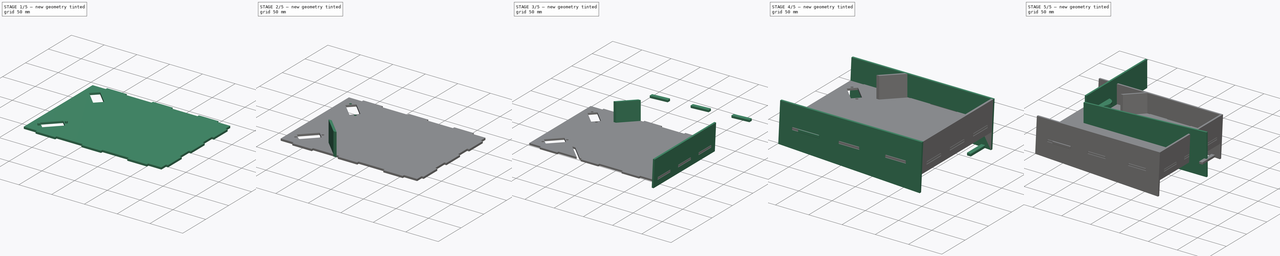
[diagram: build sequence overview — one tinted view per stage of 5, left to right]
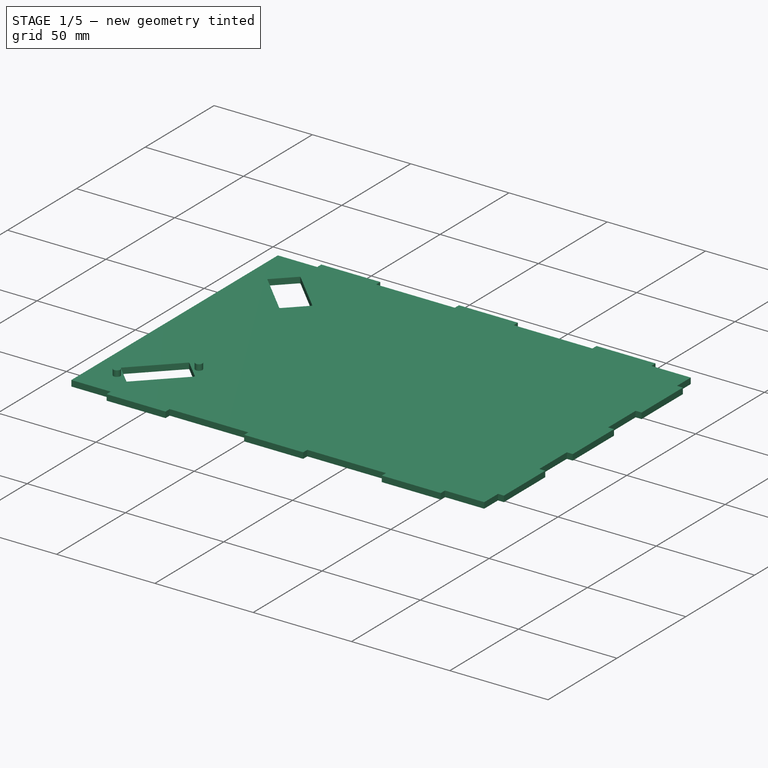
[diagram: stage 1 of 5 — iso view after this stage's code; geometry added in this stage tinted green]
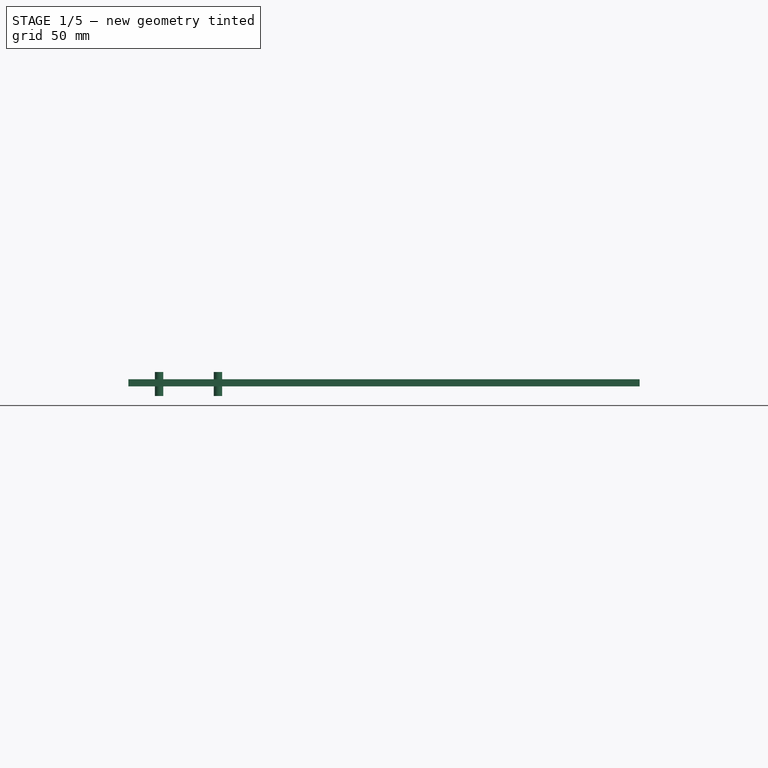
[diagram: stage 1 of 5 — front view after this stage's code; geometry added in this stage tinted green]
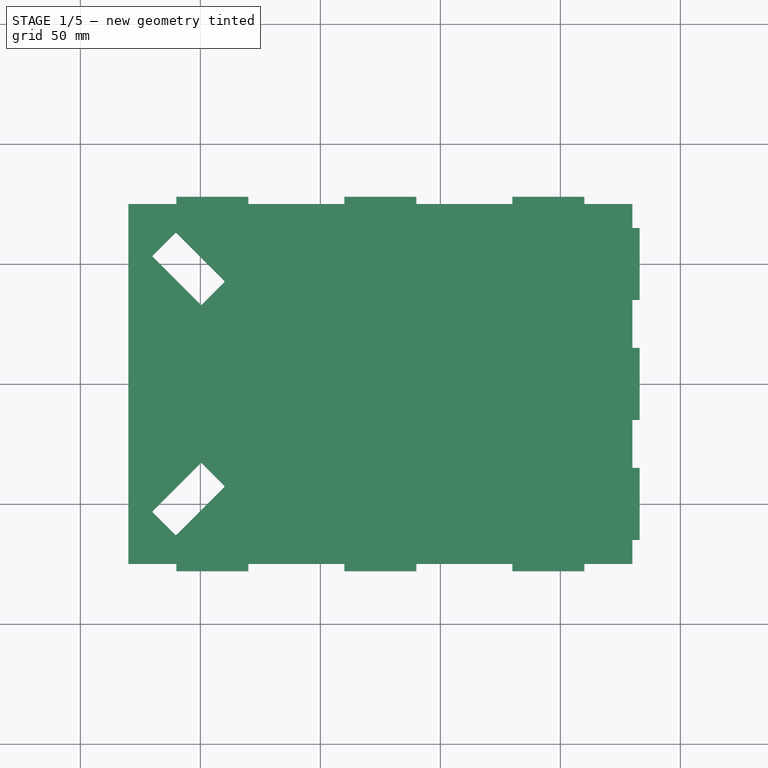
[diagram: stage 1 of 5 — top view after this stage's code; geometry added in this stage tinted green]
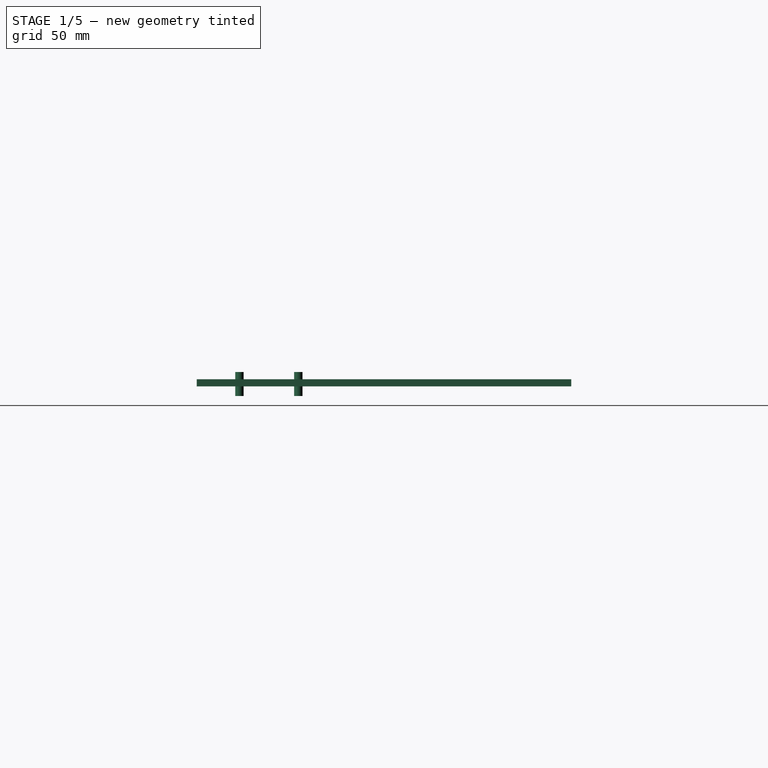
[diagram: stage 1 of 5 — right view after this stage's code; geometry added in this stage tinted green]
FCSTD DOCUMENT  (FreeCAD 0.17R13541 (Git))
Label: PinBall FPGA
License: CreativeCommons Attribution
LicenseURL: http://creativecommons.org/licenses/by/4.0/
objects: Part::Feature×26, Part::Mirroring×8, Part::Cut×8, Part::MultiFuse×5, Sketcher::SketchObject×4, PartDesign::Pad×4, PartDesign::Body×4, Part::Offset×4, Part::Box×3, App::DocumentObjectGroup×2, Part::Cylinder×1
note: 71 computed .brp shape members not serialized (recipe doc carries the construction recipe); baked Part::Feature solids carry a one-line shape summary decoded from their .brp

FEATURE [Part::Cylinder] Cylinder  label="Taladro 3.5 mm sup"
  Angle = 360
  AttacherType = Attacher::AttachEngine3D
  Height = 10
  Placement = pos=(10.35,0,-4) rot=(0,0,1;0rad)
  Radius = 1.75
FEATURE [Part::Feature] Cylinder004005  label="Taladro 3.5 mm inf"
  Placement = pos=(-24.35,0,-4) rot=(0,0,1;0rad)
  shape: bbox 3.5 x 3.5 x 10 mm, 3 faces (baked)
FEATURE [Part::MultiFuse] Fusion001  label="Fusion taladros drcha"
  Placement = pos=(0,-43,0) rot=(0,0,1;0.785398rad)
  Refine = true
  Shapes = -> [Cylinder,Cylinder004005]
FEATURE [Part::Feature] Pad001003002001  label="Pared angular drcha"
  shape: bbox 29.09 x 24.85 x 35 mm, 6 faces (baked)
FEATURE [Part::Box] Box005  label="Cubo simulacion servo"
  AttacherType = Attacher::AttachEngine3D
  Height = 10
  Length = 28
  Placement = pos=(-10.253,-62.4454,-3) rot=(0,0,1;0.785398rad)
  Width = 13
FEATURE [Part::Offset] Offset  label="Offset cubo simulacion servo drcha"
  Fill = false
  Intersection = false
  Join = 0
  Mode = 0
  SelfIntersection = false
  Source = -> Box005
  Value = 0.5
FEATURE [Part::Mirroring] Part__Mirroring008  label="Offset cubo simulacion servo izqda"
  Base = (0,0,0)
  Normal = (0,1,0)
  Source = -> Offset
FEATURE [Part::MultiFuse] Fusion006  label="Fusion vaciados servo"
  Refine = true
  Shapes = -> [Part__Mirroring008,Offset]
FEATURE [Part::Feature] Cut003001001  label="Pala pinball"
  Placement = pos=(0,-43,-18.75) rot=(0,0,1;1.5708rad)
  shape: bbox 28 x 56 x 14 mm, 27 faces (baked)
FEATURE [Part::Feature] Pad001003002001001  label="Mural derecho"
  shape: bbox 29.09 x 24.85 x 35 mm, 6 faces (baked)
FEATURE [Part::Feature] Part__Mirroring006001  label="Mural izquierdo"
  shape: bbox 29.09 x 24.85 x 35 mm, 6 faces (baked)
FEATURE [App::DocumentObjectGroup] Grupo  label="Piezas Impresas 3D"
  Group = -> [Cut003001001,Pad001003002001001,Part__Mirroring006001]
FEATURE [Part::Feature] Cut003005002  label="Tablero derecha"
  Placement = pos=(6,39,3) rot=(0.999433,0.023815,0.023815;1.57132rad)
  shape: bbox 215.9 x 70.07 x 3.003 mm, 30 faces (baked)
FEATURE [Part::Feature] Cut003003001  label="Tablero posterior"
  Placement = pos=(2,48,212.75) rot=(0.57735,0.57735,-0.57735;2.0944rad)
  shape: bbox 150 x 45 x 3.048 mm, 30 faces (baked)
FEATURE [Part::Feature] Cut003002001  label="Tablero izquierda"
  Placement = pos=(8,44,153) rot=(-0.999433,0.023815,-0.023815;1.57132rad)
  shape: bbox 215.9 x 70.07 x 3.003 mm, 30 faces (baked)
FEATURE [Part::Feature] Pad001003002001002  label="suelo sin huecos"
  shape: bbox 213 x 156 x 3 mm, 42 faces (baked)
FEATURE [Part::Cut] Cut003005003  label="suelo sin hueco servos"
  Base = -> Pad001003002001002
  Refine = true
  Tool = -> Fusion006
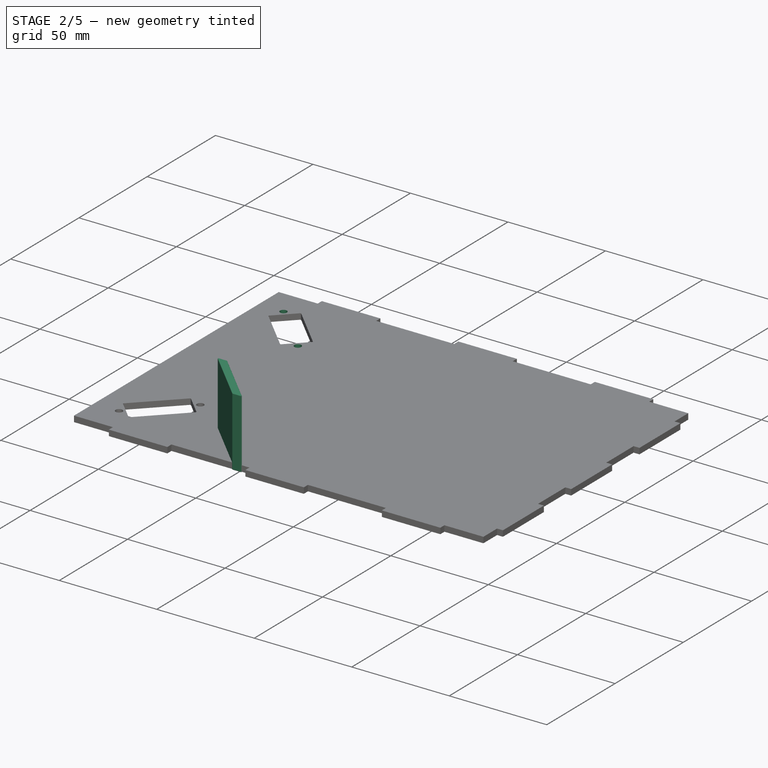
[diagram: stage 2 of 5 — iso view after this stage's code; geometry added in this stage tinted green]
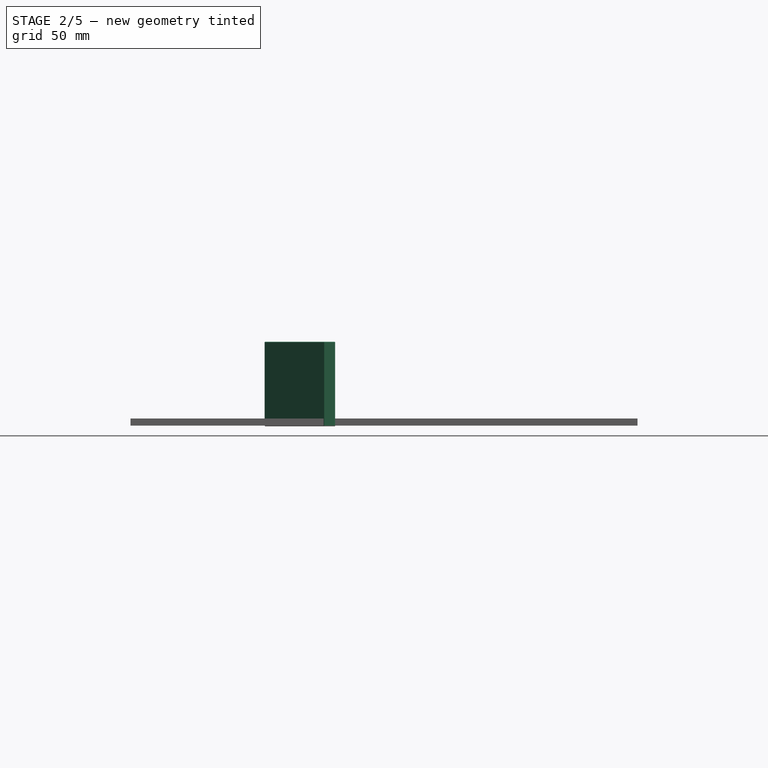
[diagram: stage 2 of 5 — front view after this stage's code; geometry added in this stage tinted green]
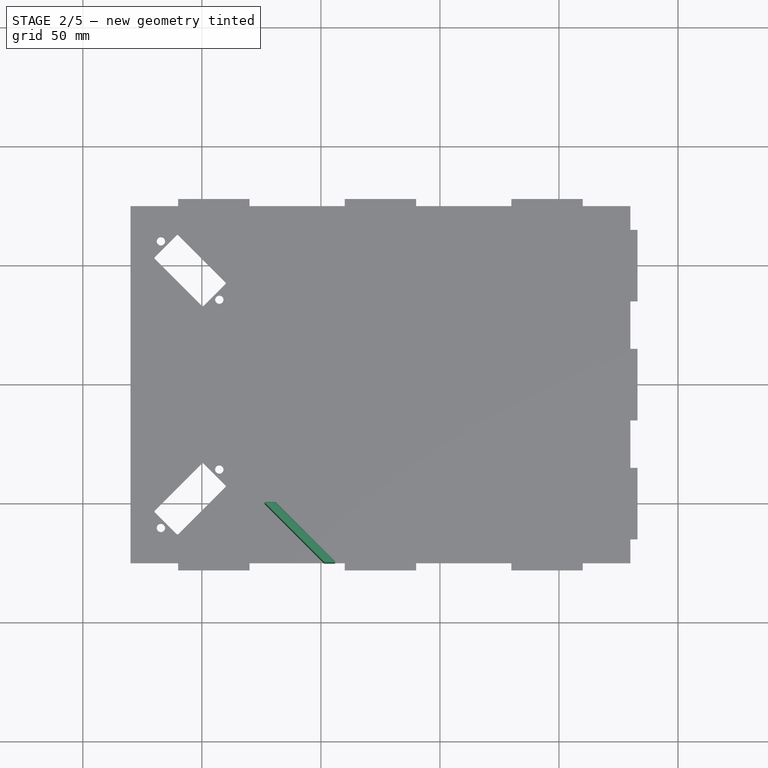
[diagram: stage 2 of 5 — top view after this stage's code; geometry added in this stage tinted green]
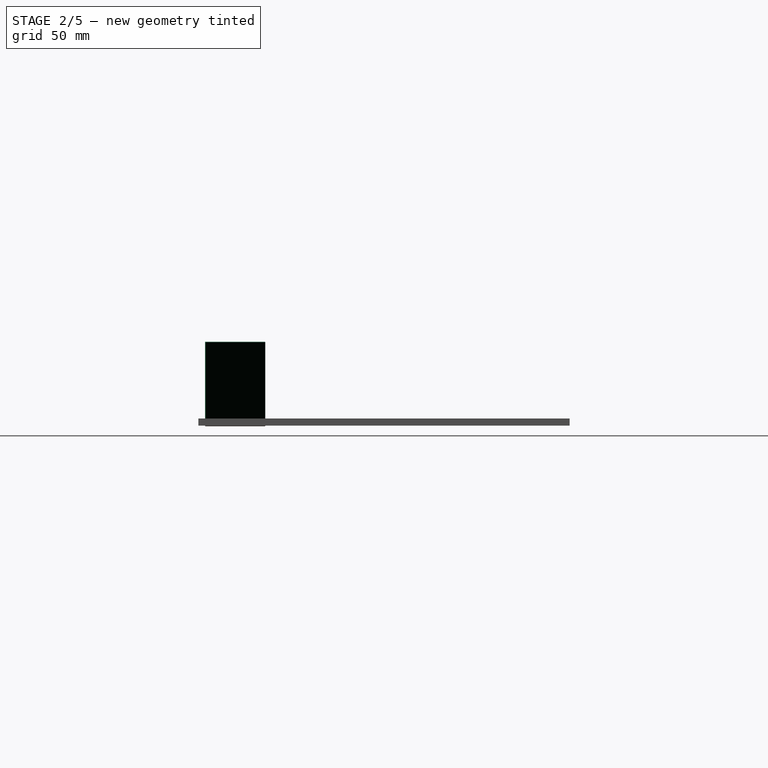
[diagram: stage 2 of 5 — right view after this stage's code; geometry added in this stage tinted green]
FEATURE [Part::Mirroring] Part__Mirroring003  label="Fusion taladros izqda"
  Base = (0,0,0)
  Normal = (0,1,0)
  Source = -> Fusion001
FEATURE [Sketcher::SketchObject] Sketch003  label="Sketch muro angular"
  MapMode = 5
  Support = -> [XY_Plane003]
  sketch-geometry (5):
    g0: LineSegment StartX=30.8647 StartY=-50.1193 StartZ=0 EndX=55.7166 EndY=-74.9712 EndZ=0
    g1: LineSegment StartX=55.7166 StartY=-74.9712 StartZ=0 EndX=51.474 EndY=-74.9712 EndZ=0
    g2: LineSegment StartX=51.474 StartY=-74.9712 StartZ=0 EndX=26.6221 EndY=-50.1193 EndZ=0
    g3: LineSegment StartX=26.6221 StartY=-50.1193 StartZ=0 EndX=30.8647 EndY=-50.1193 EndZ=0
    g4: LineSegment [constr] StartX=30.8647 StartY=-50.1193 StartZ=0 EndX=28.7434 EndY=-52.2406 EndZ=0
  constraints (12):
    c: Angle(g0,g-1) = 0.785398
    c: Coincident(g0,g1)
    c: Horizontal(g1)
    c: Coincident(g1,g2)
    c: Coincident(g2,g3)
    c: Horizontal(g3)
    c: Coincident(g0,g3)
    c: Angle(g2) = 2.35619
    c: Coincident(g4,g0)
    c: PointOnObject(g4,g2)
    c: Perpendicular(g2,g4)
    c: Distance(g4) = 3
FEATURE [PartDesign::Pad] Pad001003002  label=" pared angular drcha master"
  Length = 35
  Length2 = 100
  Profile = -> Sketch003
  Type = 0
FEATURE [PartDesign::Body] Body003
  Group = -> [Sketch003,Pad001003002]
  Origin = -> Origin003
  Tip = -> Pad001003002
FEATURE [Part::Offset] Offset002004  label="Offset mural lateral drcha"
  Fill = false
  Intersection = false
  Join = 0
  Mode = 0
  SelfIntersection = false
  Source = -> Pad001003002
  Value = 0.25
FEATURE [Part::Cut] Cut003005004  label="suelo sin taladros izqda"
  Base = -> Cut003005003
  Refine = true
  Tool = -> Part__Mirroring003
FEATURE [Part::Cut] Cut003005005  label="suelo sin taladros dercha"
  Base = -> Cut003005004
  Refine = true
  Tool = -> Fusion001
FEATURE [Part::Feature] Offset002004001  label="Offset mural lateral drcha001"
  shape: bbox 29.59 x 25.35 x 35.5 mm, 26 faces (baked)
FEATURE [Part::Cut] Cut003005006  label="Suelo sin mural drcha "
  Base = -> Cut003005005
  Refine = true
  Tool = -> Offset002004001
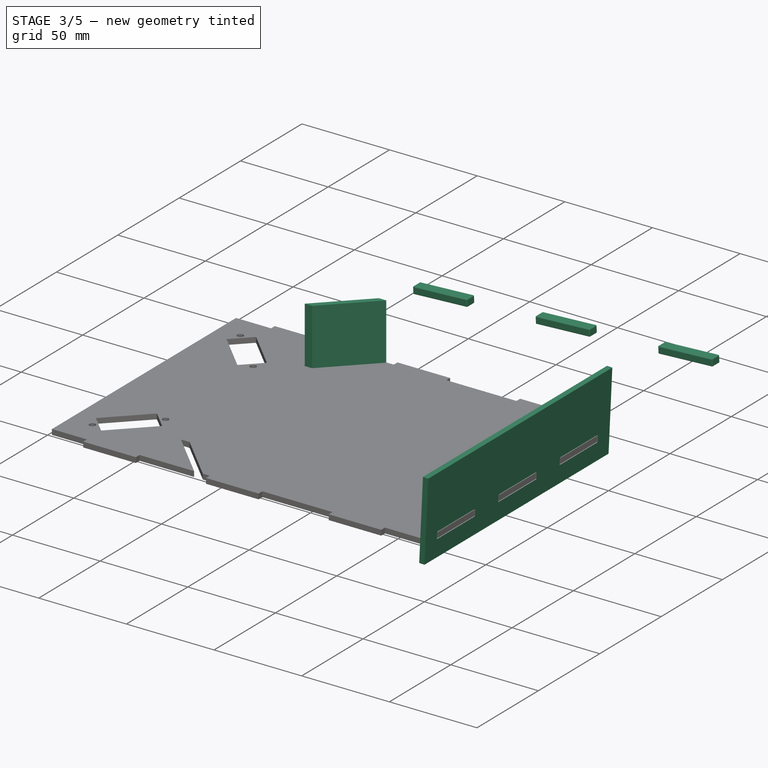
[diagram: stage 3 of 5 — iso view after this stage's code; geometry added in this stage tinted green]
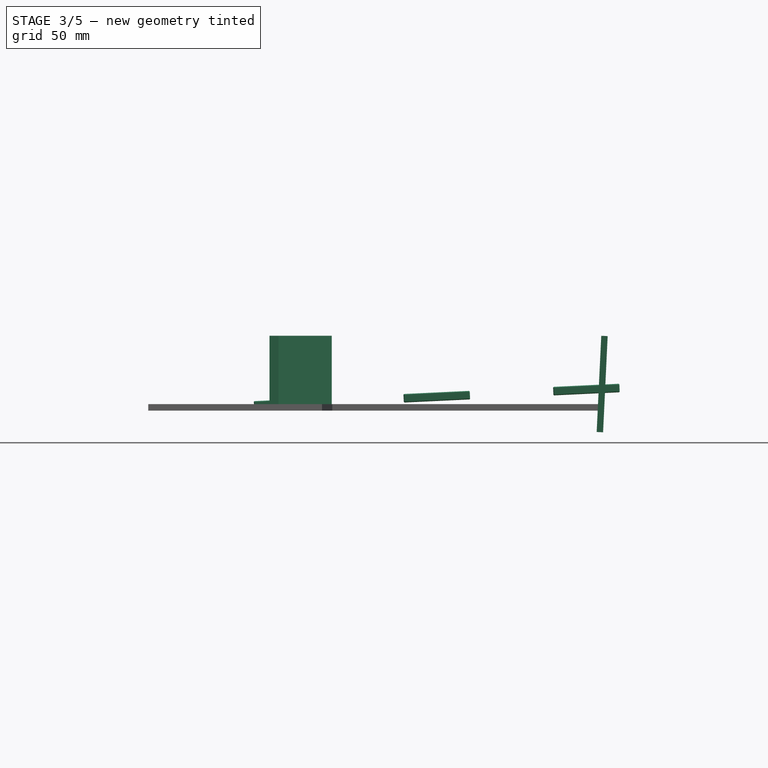
[diagram: stage 3 of 5 — front view after this stage's code; geometry added in this stage tinted green]
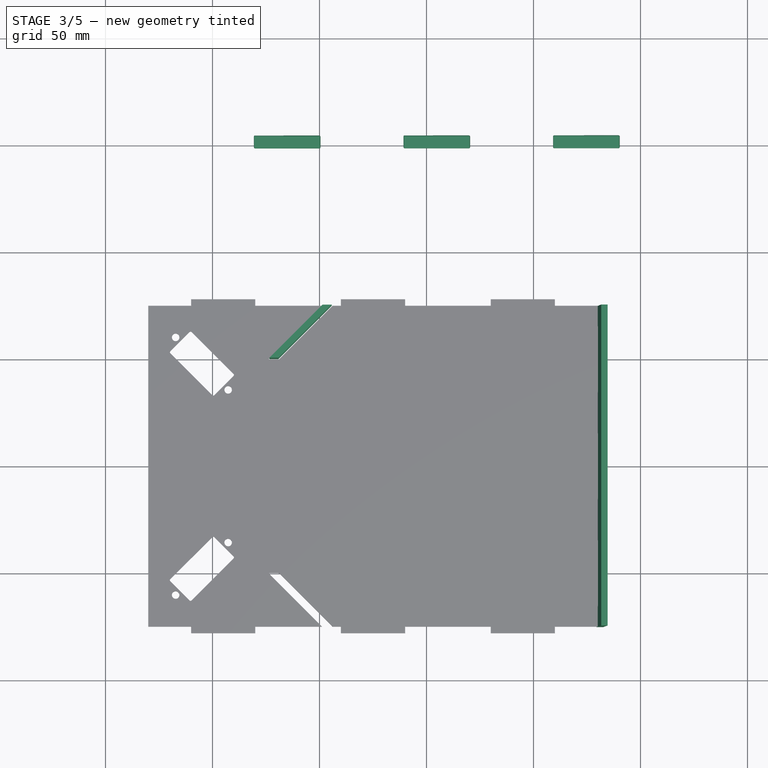
[diagram: stage 3 of 5 — top view after this stage's code; geometry added in this stage tinted green]
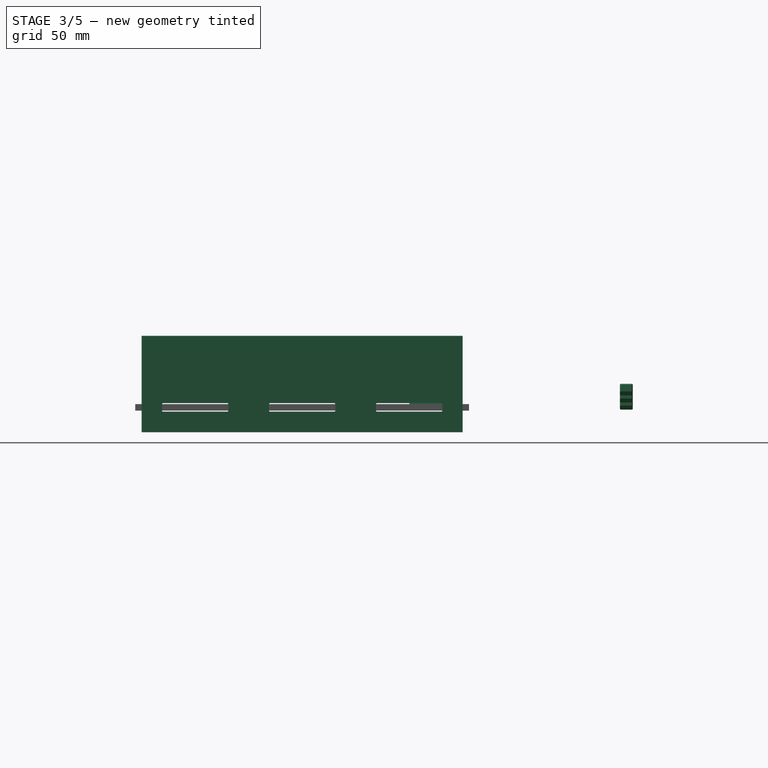
[diagram: stage 3 of 5 — right view after this stage's code; geometry added in this stage tinted green]
FEATURE [Part::Feature] Offset001001  label="Offset pestaña izqda 1"
  Placement = pos=(20,0,0) rot=(0,0,1;0rad)
  shape: bbox 31 x 6 x 4 mm, 26 faces (baked)
FEATURE [Part::Feature] Offset001002  label="Offset pestaña izqda 2"
  Placement = pos=(90,0,0) rot=(0,0,1;0rad)
  shape: bbox 31 x 6 x 4 mm, 26 faces (baked)
FEATURE [Part::Feature] Offset001003  label="Offset pestaña izqda 3"
  Placement = pos=(160,0,0) rot=(0,0,1;0rad)
  shape: bbox 31 x 6 x 4 mm, 26 faces (baked)
FEATURE [Part::MultiFuse] Fusion002  label="Fusion offset izqrda"
  Placement = pos=(0,75,0) rot=(0,-1,0;0.047647rad)
  Refine = true
  Shapes = -> [Offset001001,Offset001002,Offset001003]
FEATURE [Part::Mirroring] Part__Mirroring005  label="Fusion offset drcha"
  Base = (0,0,0)
  Normal = (0,1,0)
  Placement = pos=(0,150,0) rot=(0,0,1;0rad)
  Source = -> Fusion002
FEATURE [Part::Feature] Offset002001  label="Offset pestaña anterior 001"
  shape: bbox 6 x 31 x 4 mm, 26 faces (baked)
FEATURE [Part::Feature] Offset002002  label="Offset pestaña anterior 002"
  Placement = pos=(0,50,0) rot=(0,0,1;0rad)
  shape: bbox 6 x 31 x 4 mm, 26 faces (baked)
FEATURE [Part::Feature] Offset002003  label="Offset pestaña anterior 003"
  Placement = pos=(0,-50,0) rot=(0,0,1;0rad)
  shape: bbox 6 x 31 x 4 mm, 26 faces (baked)
FEATURE [Part::MultiFuse] Fusion003  label="Fusion offset aletas anteriores"
  Placement = pos=(0,75,0) rot=(0,-1,0;0.047647rad)
  Refine = true
  Shapes = -> [Offset002001,Offset002002,Offset002003]
FEATURE [Part::Cut] Cut003003  label="Panel Posterior"
  Base = -> Pad001003001
  Placement = pos=(-30,-75,0) rot=(0,1,0;0.047647rad)
  Refine = true
  Tool = -> Fusion003
FEATURE [Part::Mirroring] Part__Mirroring006  label="Pared angular izqda"
  Base = (0,0,0)
  Normal = (0,1,0)
  Source = -> Pad001003002
FEATURE [Part::Mirroring] Part__Mirroring007  label="Offset mural lateral izqda"
  Base = (0,0,0)
  Normal = (0,1,0)
  Source = -> Offset002004
FEATURE [Part::Cut] Cut003005007  label="Suelo"
  Base = -> Cut003005006
  Refine = true
  Tool = -> Part__Mirroring007
FEATURE [Part::Feature] Cut003005007001  label="Tablero Suelo"
  Placement = pos=(35,83,0) rot=(0,0,1;0rad)
  shape: bbox 213 x 156 x 3 mm, 76 faces (baked)
FEATURE [App::DocumentObjectGroup] Grupo001  label="Piezas CNC"
  Group = -> [Cut003005002,Cut003003001,Cut003002001,Cut003005007001]
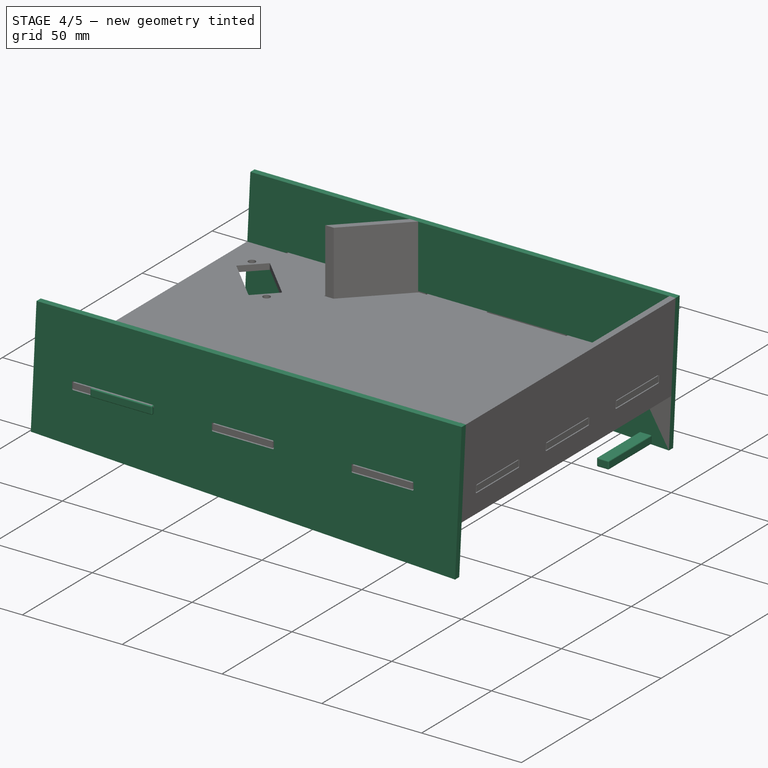
[diagram: stage 4 of 5 — iso view after this stage's code; geometry added in this stage tinted green]
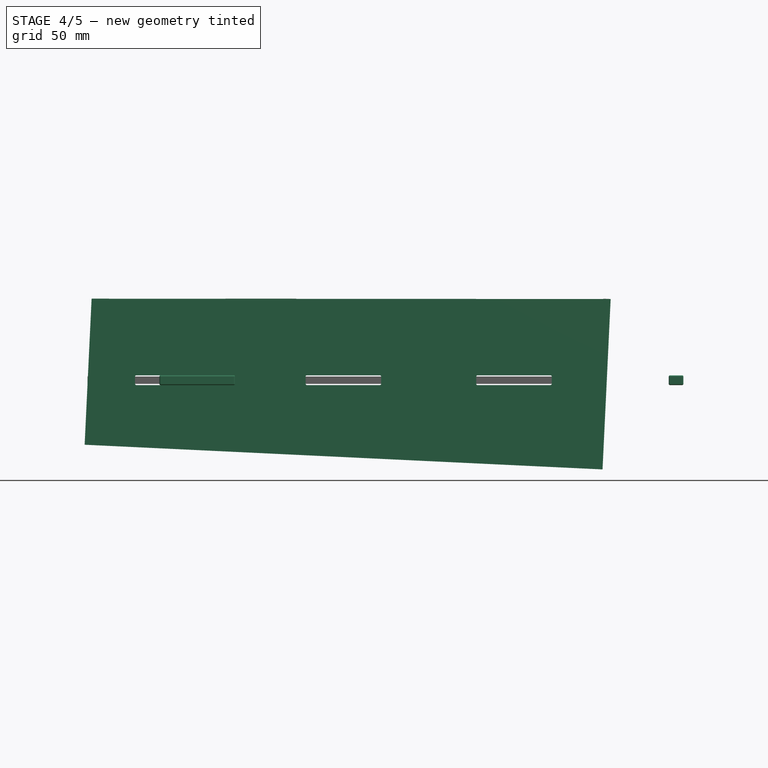
[diagram: stage 4 of 5 — front view after this stage's code; geometry added in this stage tinted green]
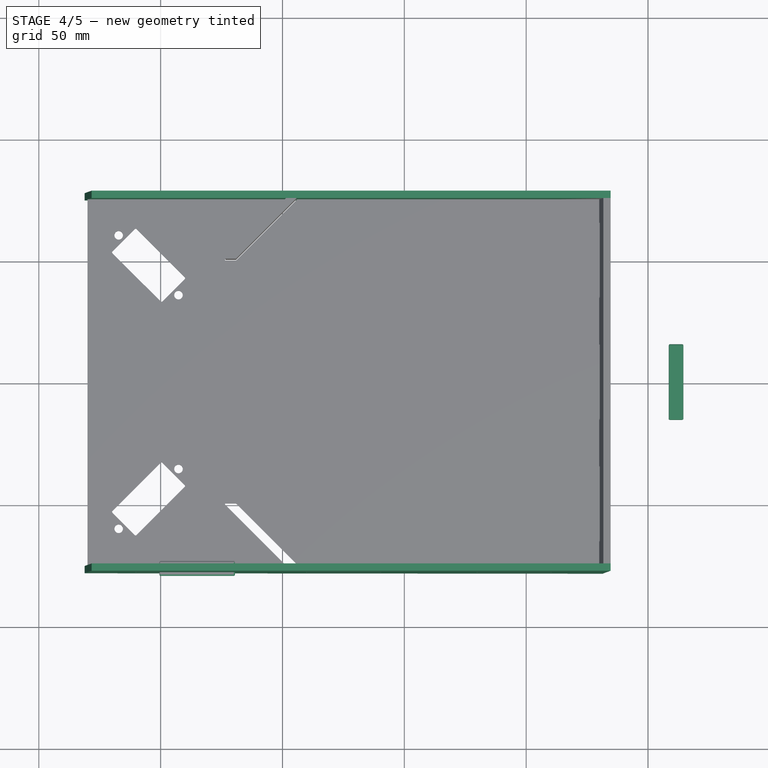
[diagram: stage 4 of 5 — top view after this stage's code; geometry added in this stage tinted green]
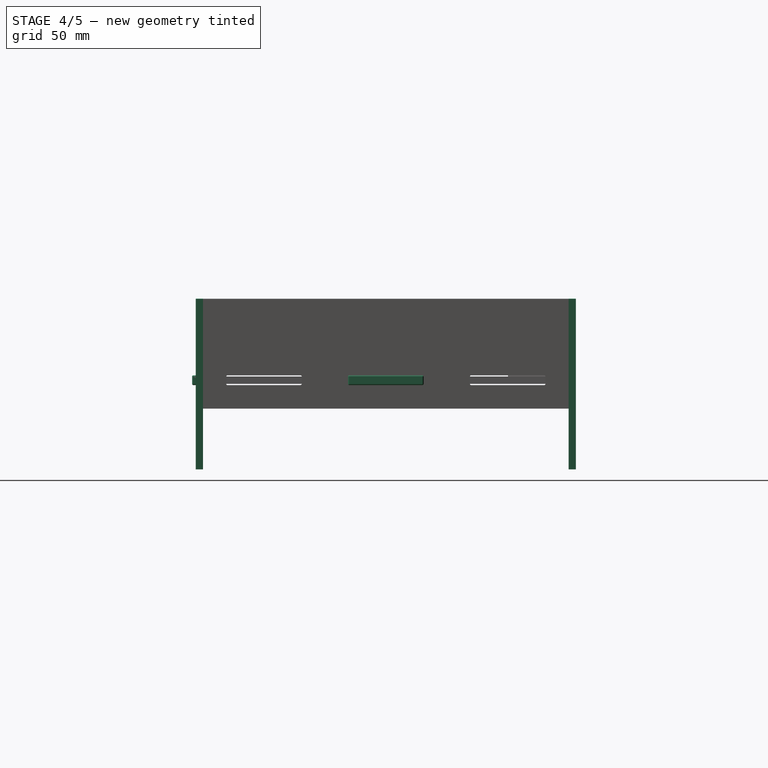
[diagram: stage 4 of 5 — right view after this stage's code; geometry added in this stage tinted green]
FEATURE [PartDesign::Body] Body
  Group = -> [Sketch,Pad]
  Origin = -> Origin
  Tip = -> Pad
FEATURE [Part::Box] Box  label="pestaña master"
  AttacherType = Attacher::AttachEngine3D
  Height = 3
  Length = 30
  Placement = pos=(0,-79,0) rot=(0,0,1;0rad)
  Width = 5
FEATURE [Part::Box] Box004  label="Aleta anterior master"
  AttacherType = Attacher::AttachEngine3D
  Height = 3
  Length = 5
  Placement = pos=(209,-15,0) rot=(0,0,1;0rad)
  Width = 30
FEATURE [Part::Offset] Offset001  label="Offset pestaña master"
  Fill = false
  Intersection = false
  Join = 0
  Mode = 0
  SelfIntersection = false
  Source = -> Box
  Value = 0.5
FEATURE [Part::Offset] Offset002  label="Offset pestaña anterior master"
  Fill = false
  Intersection = false
  Join = 0
  Mode = 0
  SelfIntersection = false
  Source = -> Box004
  Value = 0.5
FEATURE [Part::Cut] Cut  label="Panel drcha"
  Base = -> Pad001002
  Placement = pos=(-30,-75,0) rot=(0,1,0;0.047647rad)
  Refine = true
  Tool = -> Fusion002
FEATURE [Part::Cut] Cut003002  label="Panel Izqda"
  Base = -> Pad001001
  Placement = pos=(-30,-75,0) rot=(0,1,0;0.047647rad)
  Refine = true
  Tool = -> Part__Mirroring005
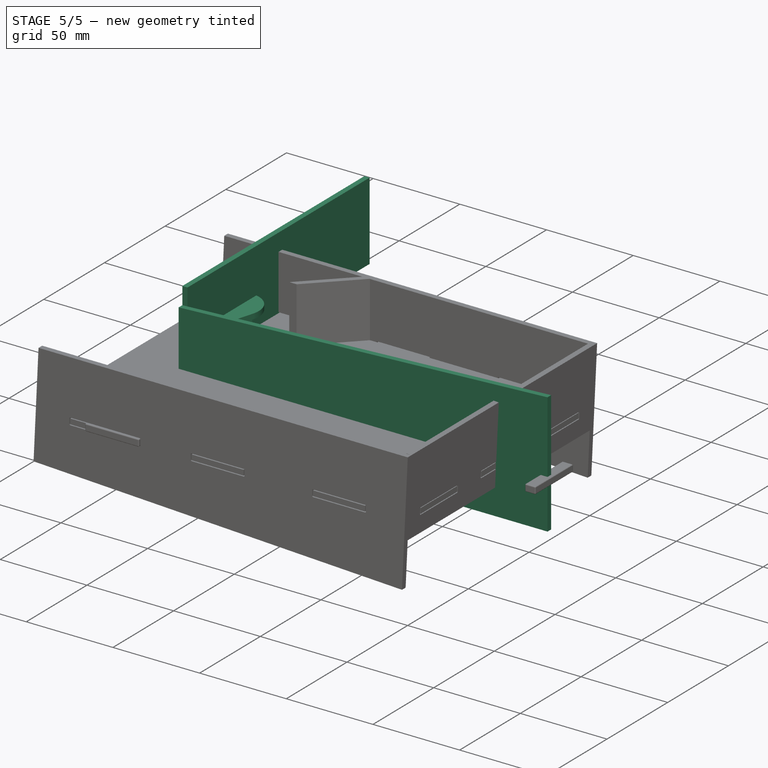
[diagram: stage 5 of 5 — iso view after this stage's code; geometry added in this stage tinted green]
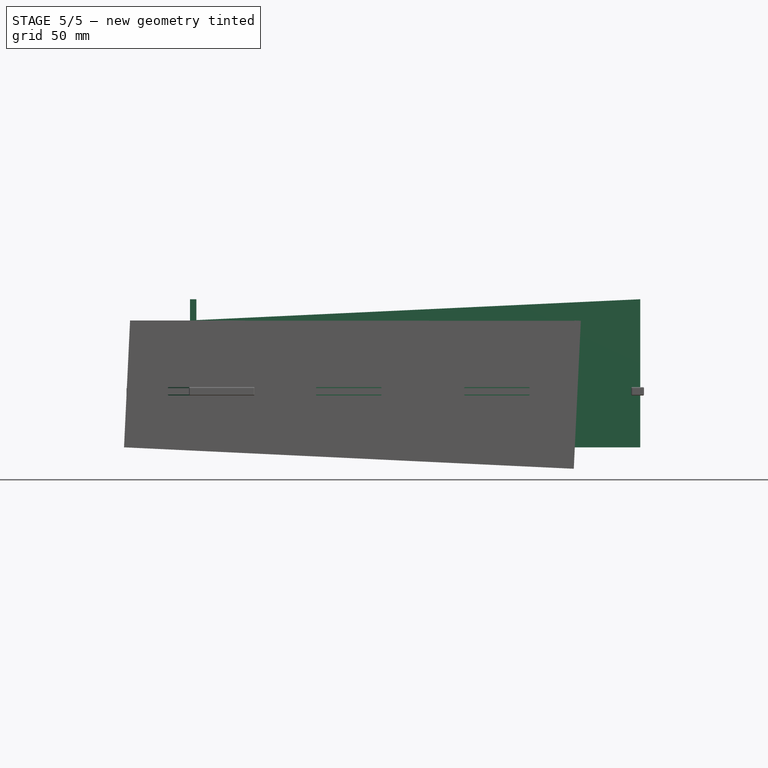
[diagram: stage 5 of 5 — front view after this stage's code; geometry added in this stage tinted green]
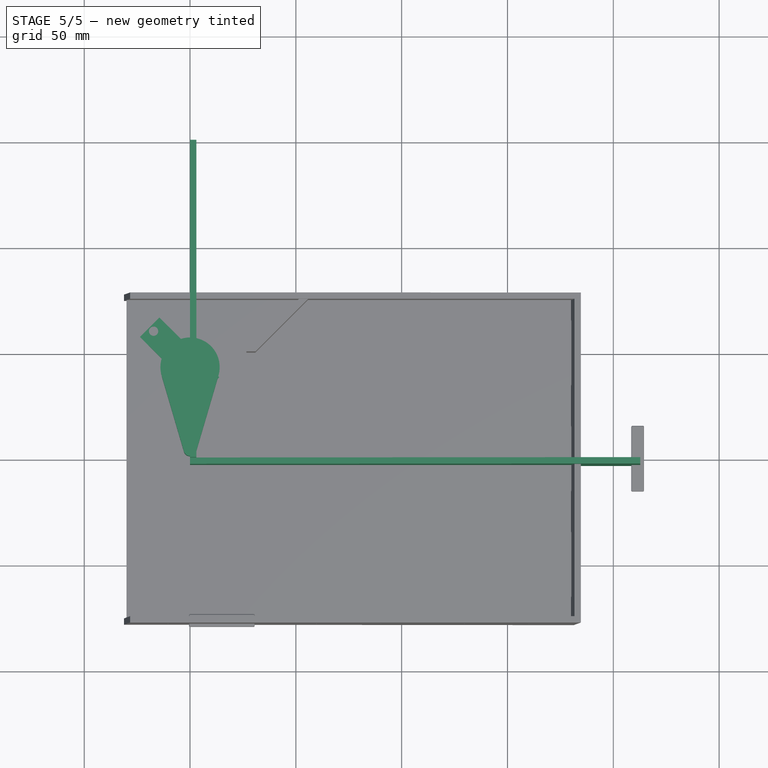
[diagram: stage 5 of 5 — top view after this stage's code; geometry added in this stage tinted green]
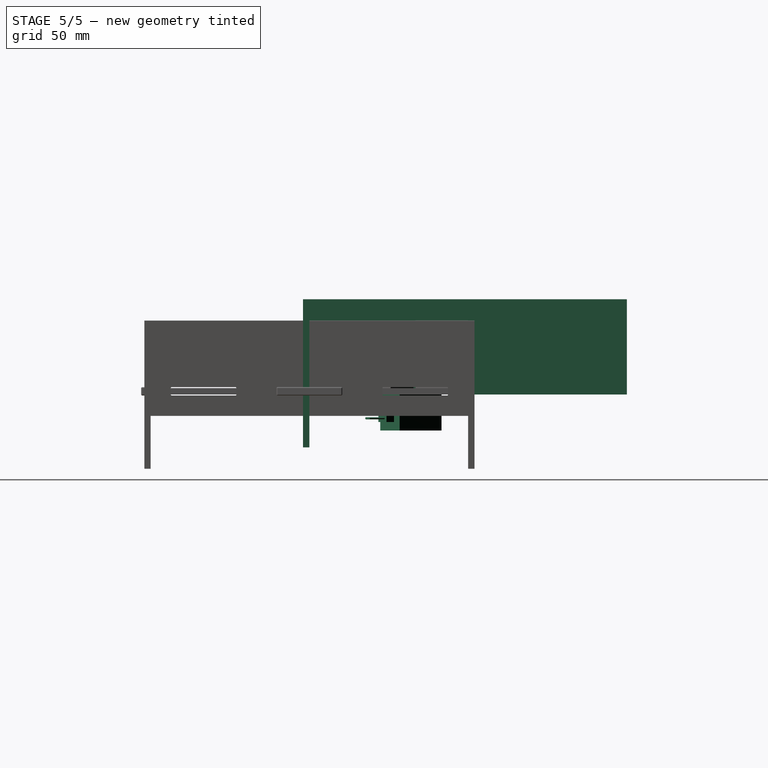
[diagram: stage 5 of 5 — right view after this stage's code; geometry added in this stage tinted green]
FEATURE [Sketcher::SketchObject] Sketch
  AttachmentOffset = pos=(0,-75,0) rot=(0,1,0;0rad)
  MapMode = 5
  Placement = pos=(0,-75,0) rot=(0,0,1;0rad)
  Support = -> [XY_Plane]
  sketch-geometry (40):
    g0: LineSegment StartX=180 StartY=0 StartZ=0 EndX=160 EndY=0 EndZ=0
    g1: LineSegment StartX=-30 StartY=0 StartZ=0 EndX=-30 EndY=150 EndZ=0
    g2: LineSegment StartX=-10 StartY=0 StartZ=0 EndX=-10 EndY=-3 EndZ=0
    g3: LineSegment StartX=-10 StartY=-3 StartZ=0 EndX=20 EndY=-3 EndZ=0
    g4: LineSegment StartX=20 StartY=-3 StartZ=0 EndX=20 EndY=0 EndZ=0
    g5: LineSegment StartX=60 StartY=0 StartZ=0 EndX=60 EndY=-3 EndZ=0
    g6: LineSegment StartX=60 StartY=-3 StartZ=0 EndX=90 EndY=-3 EndZ=0
    g7: LineSegment StartX=90 StartY=-3 StartZ=0 EndX=90 EndY=0 EndZ=0
    g8: LineSegment StartX=130 StartY=0 StartZ=0 EndX=130 EndY=-3 EndZ=0
    g9: LineSegment StartX=130 StartY=-3 StartZ=0 EndX=160 EndY=-3 EndZ=0
    g10: LineSegment StartX=160 StartY=-3 StartZ=0 EndX=160 EndY=0 EndZ=0
    g11: LineSegment StartX=-10 StartY=0 StartZ=0 EndX=-30 EndY=0 EndZ=0
    g12: LineSegment StartX=60 StartY=0 StartZ=0 EndX=20 EndY=0 EndZ=0
    g13: LineSegment StartX=130 StartY=0 StartZ=0 EndX=90 EndY=0 EndZ=0
    g14: LineSegment StartX=-30 StartY=150 StartZ=0 EndX=-10 EndY=150 EndZ=0
    g15: LineSegment StartX=-10 StartY=150 StartZ=0 EndX=-10 EndY=153 EndZ=0
    g16: LineSegment StartX=-10 StartY=153 StartZ=0 EndX=20 EndY=153 EndZ=0
    g17: LineSegment StartX=20 StartY=153 StartZ=0 EndX=20 EndY=150 EndZ=0
    g18: LineSegment StartX=20 StartY=150 StartZ=0 EndX=60 EndY=150 EndZ=0
    g19: LineSegment StartX=60 StartY=150 StartZ=0 EndX=60 EndY=153 EndZ=0
    g20: LineSegment StartX=60 StartY=153 StartZ=0 EndX=90 EndY=153 EndZ=0
    g21: LineSegment StartX=90 StartY=153 StartZ=0 EndX=90 EndY=150 EndZ=0
    g22: LineSegment StartX=90 StartY=150 StartZ=0 EndX=130 EndY=150 EndZ=0
    g23: LineSegment StartX=130 StartY=150 StartZ=0 EndX=130 EndY=153 EndZ=0
    g24: LineSegment StartX=130 StartY=153 StartZ=0 EndX=160 EndY=153 EndZ=0
    g25: LineSegment StartX=160 StartY=153 StartZ=0 EndX=160 EndY=150 EndZ=0
    g26: LineSegment StartX=160 StartY=150 StartZ=0 EndX=180 EndY=150 EndZ=0
    g27: LineSegment StartX=180 StartY=150 StartZ=0 EndX=180 EndY=140 EndZ=0
    g28: LineSegment StartX=180 StartY=140 StartZ=0 EndX=183 EndY=140 EndZ=0
    g29: LineSegment StartX=183 StartY=140 StartZ=0 EndX=183 EndY=110 EndZ=0
    g30: LineSegment StartX=183 StartY=110 StartZ=0 EndX=180 EndY=110 EndZ=0
    g31: LineSegment StartX=180 StartY=110 StartZ=0 EndX=180 EndY=90 EndZ=0
    g32: LineSegment StartX=183 StartY=40 StartZ=0 EndX=183 EndY=10 EndZ=0
    g33: LineSegment StartX=183 StartY=10 StartZ=0 EndX=180 EndY=10 EndZ=0
    g34: LineSegment StartX=180 StartY=10 StartZ=0 EndX=180 EndY=0 EndZ=0
    g35: LineSegment StartX=180 StartY=90 StartZ=0 EndX=183 EndY=90 EndZ=0
    g36: LineSegment StartX=183 StartY=90 StartZ=0 EndX=183 EndY=60 EndZ=0
    g37: LineSegment StartX=183 StartY=60 StartZ=0 EndX=180 EndY=60 EndZ=0
    g38: LineSegment StartX=180 StartY=60 StartZ=0 EndX=180 EndY=40 EndZ=0
    g39: LineSegment StartX=180 StartY=40 StartZ=0 EndX=183 EndY=40 EndZ=0
  constraints (120):
    c: Coincident(g11,g1)
    c: Vertical(g1)
    c: DistanceY(g1,g1) = 150
    c: DistanceX(g1,g26) = 210
    c: DistanceX(g-1,g11) = -30
    c: DistanceY(g-1,g11) = 0
    c: Vertical(g2)
    c: Coincident(g2,g3)
    c: Horizontal(g3)
    c: Coincident(g3,g4)
    c: Vertical(g4)
    c: Vertical(g5)
    c: Coincident(g5,g6)
    c: Horizontal(g6)
    c: Coincident(g6,g7)
    c: Vertical(g7)
    c: Vertical(g8)
    c: Coincident(g8,g9)
    c: Horizontal(g9)
    c: Coincident(g9,g10)
    c: Vertical(g10)
    c: Coincident(g12,g4)
    c: Coincident(g11,g2)
    c: Tangent(g0,g11)
    c: Coincident(g13,g7)
    c: Coincident(g12,g5)
    c: Tangent(g0,g12)
    c: Coincident(g0,g10)
    c: Coincident(g13,g8)
    c: Tangent(g0,g13)
    c: DistanceX(g11,g11) = 20
    c: DistanceX(g3,g3) = 30
    c: DistanceX(g12,g12) = 40
    c: DistanceX(g6,g6) = 30
    c: DistanceX(g13,g13) = 40
    c: DistanceX(g9,g9) = 30
    c: DistanceY(g2,g2) = 3
    c: Equal(g2,g4)
    c: Equal(g4,g5)
    c: Equal(g5,g7)
    c: Equal(g7,g8)
    c: Equal(g8,g10)
    c: Coincident(g1,g14)
    c: Horizontal(g14)
    c: Coincident(g14,g15)
    c: Vertical(g15)
    c: Coincident(g15,g16)
    c: Horizontal(g16)
    c: Coincident(g16,g17)
    c: Vertical(g17)
    c: Coincident(g17,g18)
    c: Horizontal(g18)
    c: Coincident(g18,g19)
    c: Vertical(g19)
    c: Coincident(g19,g20)
    c: Horizontal(g20)
    c: Coincident(g20,g21)
    c: Vertical(g21)
    c: Coincident(g21,g22)
    c: Horizontal(g22)
    c: Coincident(g22,g23)
    c: Vertical(g23)
    c: Coincident(g23,g24)
    c: Horizontal(g24)
    c: Coincident(g24,g25)
    c: Vertical(g25)
    c: Coincident(g25,g26)
    c: Horizontal(g26)
    c: Coincident(g26,g27)
    c: Vertical(g27)
    c: Coincident(g27,g28)
    c: Horizontal(g28)
    c: Coincident(g28,g29)
    c: Vertical(g29)
    c: Coincident(g29,g30)
    c: Horizontal(g30)
    c: Coincident(g30,g31)
    c: Vertical(g31)
    c: Vertical(g32)
    c: Coincident(g32,g33)
    c: Horizontal(g33)
    c: Coincident(g33,g34)
    c: Coincident(g34,g0)
    c: Vertical(g34)
    c: DistanceX(g16,g16) = 30
    c: Equal(g16,g20)
    c: Equal(g20,g24)
    c: DistanceX(g14,g14) = 20
    c: Equal(g14,g26)
    c: DistanceX(g18,g18) = 40
    c: Coincident(g31,g35)
    c: Horizontal(g35)
    c: Coincident(g35,g36)
    c: Vertical(g36)
    c: Coincident(g36,g37)
    c: Horizontal(g37)
    c: Coincident(g37,g38)
    c: Vertical(g38)
    c: Coincident(g38,g39)
    c: Coincident(g39,g32)
    c: Horizontal(g39)
    c: DistanceY(g27,g27) = 10
    c: DistanceY(g15,g15) = 3
    c: Equal(g15,g17)
    c: Equal(g17,g19)
    c: Equal(g19,g21)
    c: Equal(g21,g23)
    c: Equal(g23,g25)
    c: DistanceX(g28,g28) = 3
    c: DistanceY(g29,g29) = 30
    c: Equal(g29,g36)
    c: Equal(g36,g32)
    c: DistanceY(g31,g31) = 20
    c: Equal(g31,g38)
    c: Equal(g27,g34)
    c: Equal(g28,g30)
    c: Equal(g30,g35)
    c: Equal(g35,g37)
    c: Equal(g37,g39)
    c: Equal(g39,g33)
FEATURE [Part::Feature] Cut002  label="Servo HD1160A"
  Placement = pos=(0,-7,0) rot=(0,0,1;0rad)
  shape: bbox 13 x 40 x 34 mm, 29 faces (baked)
FEATURE [Part::Feature] Fillet002  label="Soporte 4 palas servo HD1160 drcha"
  Placement = pos=(0,-43,16.25) rot=(0,0,1;1.5708rad)
  shape: bbox 26 x 26 x 5.52 mm, 39 faces (baked)
FEATURE [Part::Feature] Cut003001  label="Pala pinball Drcha  "
  Placement = pos=(0,-43,-18.75) rot=(0,0,1;1.5708rad)
  shape: bbox 28 x 56 x 14 mm, 27 faces (baked)
FEATURE [Part::Feature] Cylinder004002  label="cable naranja"
  Placement = pos=(-1,22,5.75) rot=(1,0,0;1.5708rad)
  shape: bbox 1 x 10 x 1 mm, 3 faces (baked)
FEATURE [Part::Feature] Cylinder004001  label="cable rojo"
  Placement = pos=(0,22,5.75) rot=(1,0,0;1.5708rad)
  shape: bbox 1 x 10 x 1 mm, 3 faces (baked)
FEATURE [Part::Feature] Cylinder004004  label="cable marron"
  Placement = pos=(1,22,5.75) rot=(1,0,0;1.5708rad)
  shape: bbox 1 x 10 x 1 mm, 3 faces (baked)
FEATURE [Part::MultiFuse] Fusion  label="Servo derecho"
  Placement = pos=(0,-43,-17) rot=(0,0,-1;0.785398rad)
  Refine = true
  Shapes = -> [Cut002,Cylinder004002,Cylinder004001,Cylinder004004]
FEATURE [Part::Mirroring] Part__Mirroring  label="Servo Izqdo"
  Base = (0,0,0)
  Normal = (0,1,0)
  Source = -> Fusion
FEATURE [Part::Mirroring] Part__Mirroring001  label="Pala pinball Izqda"
  Base = (0,0,0)
  Normal = (0,1,0)
  Source = -> Cut003001
FEATURE [Part::Mirroring] Part__Mirroring002  label="Soporte 4 palas servo HD1160 izqda "
  Base = (0,0,0)
  Normal = (0,1,0)
  Source = -> Fillet002
FEATURE [Sketcher::SketchObject] Sketch001  label="Sketch lateral izquierdo"
  MapMode = 5
  Placement = pos=(0,0,0) rot=(1,0,0;1.5708rad)
  Support = -> [XZ_Plane001]
  sketch-geometry (4):
    g0: LineSegment StartX=0 StartY=-25 StartZ=0 EndX=212.76 EndY=-25 EndZ=0
    g1: LineSegment StartX=212.76 StartY=-25 StartZ=0 EndX=212.76 EndY=45 EndZ=0
    g2: LineSegment StartX=212.76 StartY=45 StartZ=0 EndX=0 EndY=35 EndZ=0
    g3: LineSegment StartX=0 StartY=35 StartZ=0 EndX=0 EndY=-25 EndZ=0
  constraints (12):
    c: PointOnObject(g0,g-2)
    c: Horizontal(g0)
    c: Coincident(g0,g1)
    c: Vertical(g1)
    c: Coincident(g1,g2)
    c: PointOnObject(g2,g-2)
    c: Coincident(g2,g3)
    c: Coincident(g3,g0)
    c: DistanceY(g1,g1) = 70
    c: DistanceY(g3,g3) = 60
    c: DistanceX(g0,g0) = 212.76
    c: DistanceY(g0,g-1) = 25
FEATURE [PartDesign::Pad] Pad001  label="Lateral Izquierdo Master"
  Length = 3
  Length2 = 100
  Placement = pos=(0,0,0) rot=(1,0,0;1.5708rad)
  Profile = -> Sketch001
  Type = 0
FEATURE [PartDesign::Body] Body001
  Group = -> [Sketch001,Pad001]
  Origin = -> Origin001
  Tip = -> Pad001
FEATURE [Part::Feature] Pad001001  label="Lateral Derecho"
  Placement = pos=(0,153,0) rot=(1,0,0;1.5708rad)
  shape: bbox 212.8 x 3 x 70 mm, 6 faces (baked)
FEATURE [Part::Feature] Pad001002  label="Lateral Izquierdo"
  Placement = pos=(0,0,0) rot=(1,0,0;1.5708rad)
  shape: bbox 212.8 x 3 x 70 mm, 6 faces (baked)
FEATURE [Sketcher::SketchObject] Sketch002  label="Sketch cierre posterior"
  MapMode = 5
  Placement = pos=(0,0,0) rot=(0.57735,0.57735,0.57735;2.0944rad)
  Support = -> [YZ_Plane002]
  sketch-geometry (4):
    g0: LineSegment StartX=0 StartY=0 StartZ=0 EndX=150 EndY=0 EndZ=0
    g1: LineSegment StartX=150 StartY=0 StartZ=0 EndX=150 EndY=45 EndZ=0
    g2: LineSegment StartX=150 StartY=45 StartZ=0 EndX=0 EndY=45 EndZ=0
    g3: LineSegment StartX=0 StartY=45 StartZ=0 EndX=0 EndY=0 EndZ=0
  constraints (11):
    c: Coincident(g-1,g0)
    c: PointOnObject(g0,g-1)
    c: Coincident(g0,g1)
    c: Vertical(g1)
    c: Coincident(g1,g2)
    c: PointOnObject(g2,g-2)
    c: Horizontal(g2)
    c: Coincident(g2,g3)
    c: Coincident(g3,g0)
    c: DistanceX(g2,g2) = 150
    c: DistanceY(g1,g1) = 45
FEATURE [PartDesign::Pad] Pad001003  label="Cierre posterior master"
  Length = 3
  Length2 = 100
  Placement = pos=(0,0,0) rot=(0.57735,0.57735,0.57735;2.0944rad)
  Profile = -> Sketch002
  Type = 0
FEATURE [PartDesign::Body] Body002
  Group = -> [Sketch002,Pad001003]
  Origin = -> Origin002
  Tip = -> Pad001003
FEATURE [Part::Feature] Pad001003001  label="Pared Cierre posterior"
  Placement = pos=(209.76,0,0) rot=(0.57735,0.57735,0.57735;2.0944rad)
  shape: bbox 3 x 150 x 45 mm, 6 faces (baked)
FEATURE [PartDesign::Pad] Pad
  Length = 3
  Length2 = 100
  Profile = -> Sketch
  Type = 0
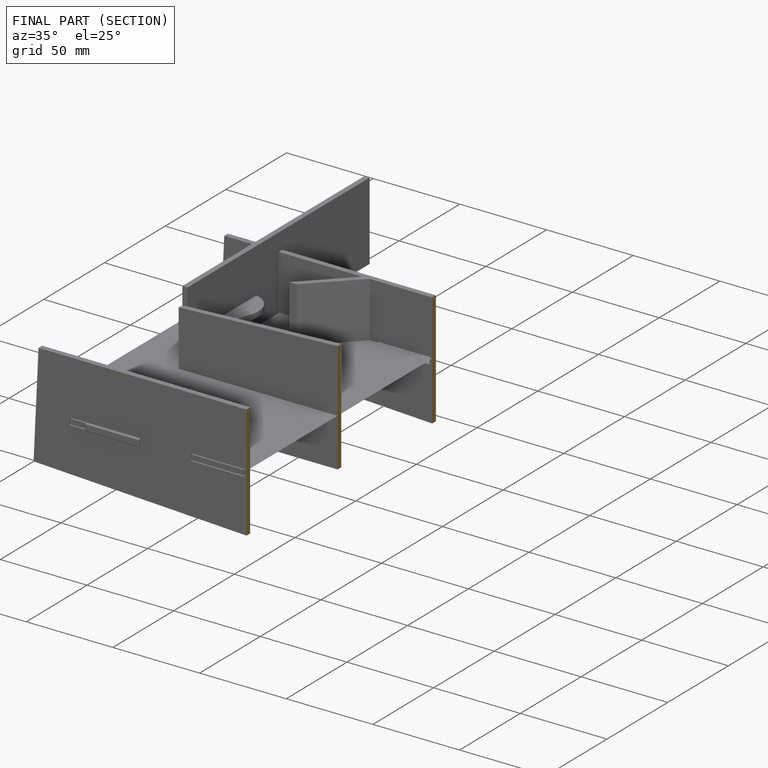
[diagram: finished part — half-section view (interior)]
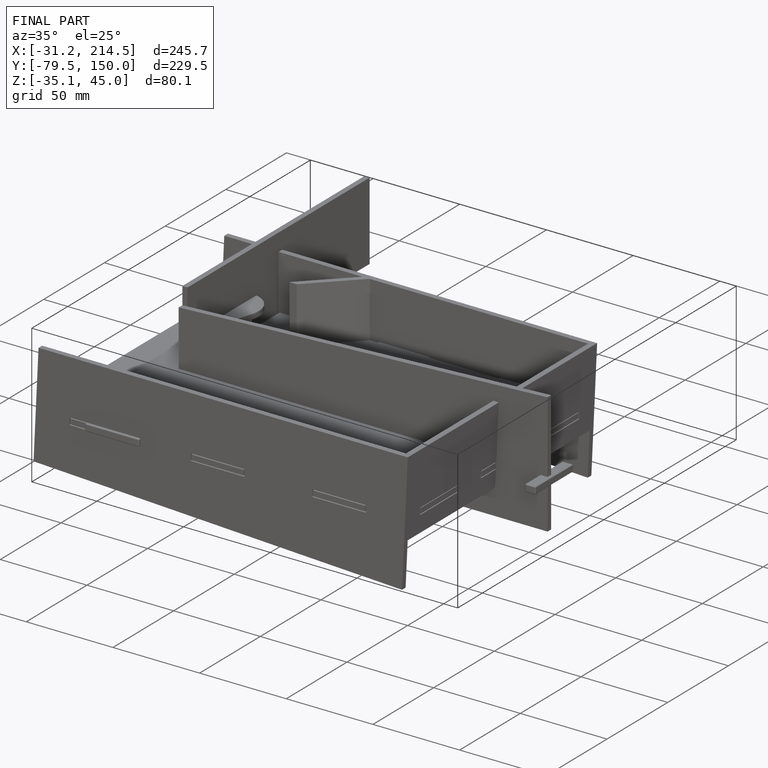
[diagram: finished part — iso view with bounding-box wireframe]
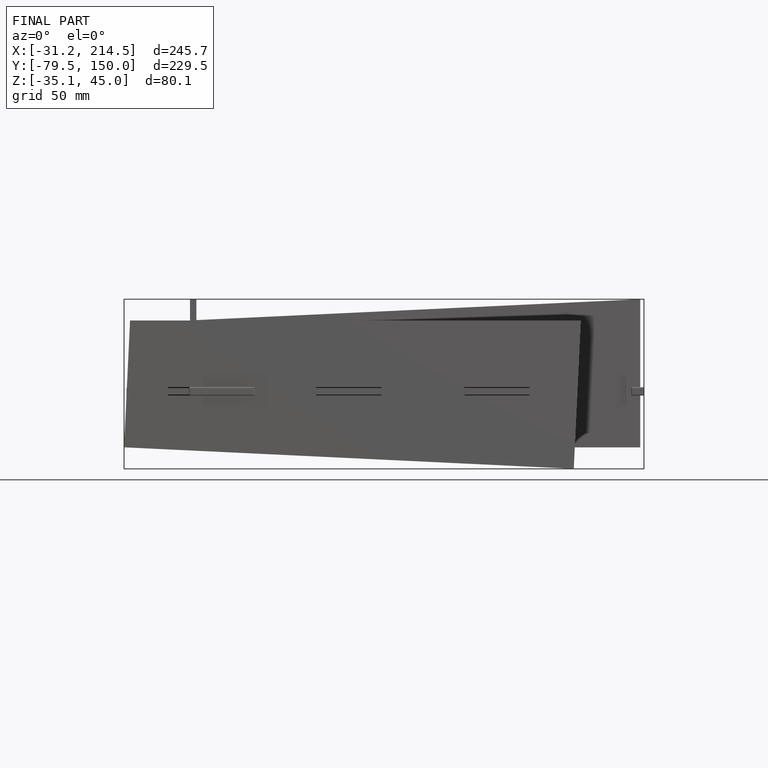
[diagram: finished part — front view with bounding-box wireframe]
